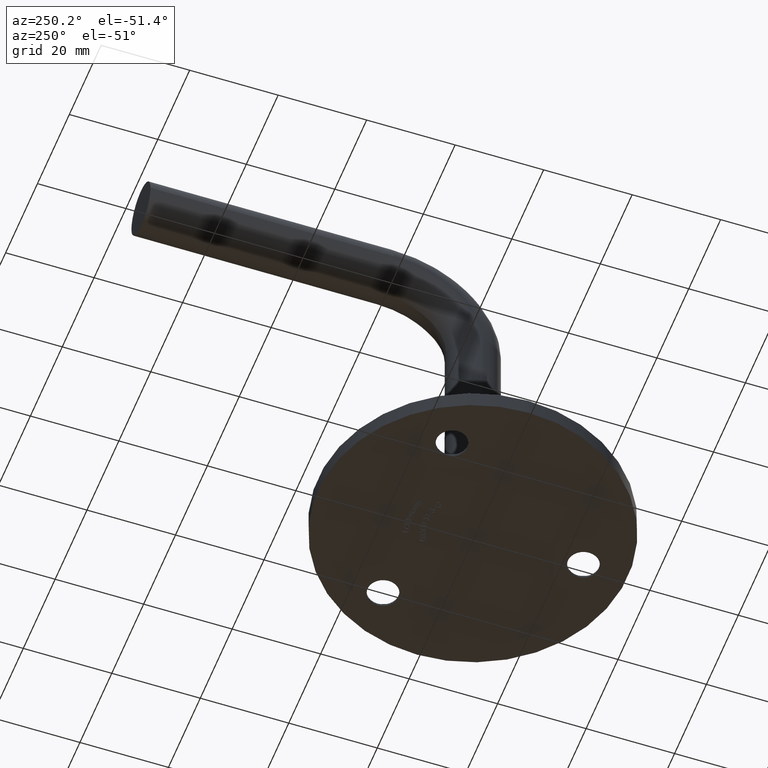
[diagram: clean part render]
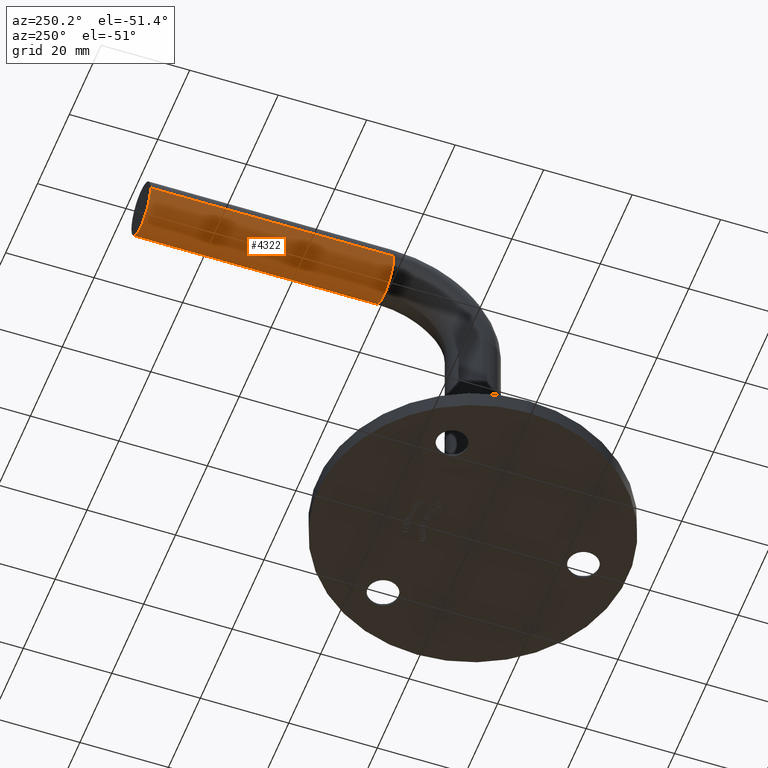
[diagram: same view with one face highlighted and labeled with its STEP entity id]
A machine part, auxiliary view. The second image highlights one B-rep face of the part: STEP entity #4322.
In plain terms, the highlighted cylindrical surface (edge-blend (fillet) strip) has radius 6 mm, axis along (0, 1, 0).
Its self-contained STEP definition (entity closure, byte-faithful):
#484 = DIRECTION ( 'NONE',  ( -1.000000000000000000, 0.0000000000000000000, 0.0000000000000000000 ) ) ;
#641 = VERTEX_POINT ( 'NONE', #7590 ) ;
#716 = VERTEX_POINT ( 'NONE', #11495 ) ;
#762 = EDGE_CURVE ( 'NONE', #716, #641, #11593, .T. ) ;
#958 = DIRECTION ( 'NONE',  ( -1.000000000000000000, 0.0000000000000000000, 0.0000000000000000000 ) ) ;
#1068 = DIRECTION ( 'NONE',  ( -1.000000000000000000, 0.0000000000000000000, 0.0000000000000000000 ) ) ;
#1807 = LINE ( 'NONE', #1935, #15523 ) ;
#1935 = CARTESIAN_POINT ( 'NONE',  ( 6.000000000000000900, 20.00000000000000400, 79.00000000000000000 ) ) ;
#2104 = ORIENTED_EDGE ( 'NONE', *, *, #3686, .F. ) ;
#2360 = AXIS2_PLACEMENT_3D ( 'NONE', #4366, #11673, #15537 ) ;
#2448 = ORIENTED_EDGE ( 'NONE', *, *, #5112, .F. ) ;
#3088 = CARTESIAN_POINT ( 'NONE',  ( 6.000000000000000900, 20.00000000000000400, 79.00000000000000000 ) ) ;
#3210 = CIRCLE ( 'NONE', #11559, 6.000000000000000900 ) ;
#3282 = DIRECTION ( 'NONE',  ( 8.795190648421900900E-017, 1.000000000000000000, 0.0000000000000000000 ) ) ;
#3686 = EDGE_CURVE ( 'NONE', #9492, #641, #1807, .T. ) ;
#3984 = CARTESIAN_POINT ( 'NONE',  ( 0.0000000000000000000, 20.00000000000000400, 79.00000000000000000 ) ) ;
#4322 = ADVANCED_FACE ( 'NONE', ( #7185 ), #16205, .T. ) ;
#4366 = CARTESIAN_POINT ( 'NONE',  ( 0.0000000000000000000, 20.00000000000000400, 79.00000000000000000 ) ) ;
#4445 = ORIENTED_EDGE ( 'NONE', *, *, #13820, .T. ) ;
#5112 = EDGE_CURVE ( 'NONE', #6102, #13467, #6775, .T. ) ;
#5997 = EDGE_CURVE ( 'NONE', #13467, #9492, #3210, .T. ) ;
#6102 = VERTEX_POINT ( 'NONE', #15081 ) ;
#6775 = CIRCLE ( 'NONE', #9605, 6.000000000000000900 ) ;
#7185 = FACE_OUTER_BOUND ( 'NONE', #13787, .T. ) ;
#7590 = CARTESIAN_POINT ( 'NONE',  ( 6.000000000000006200, 75.00000000000000000, 79.00000000000000000 ) ) ;
#8267 = DIRECTION ( 'NONE',  ( 0.0000000000000000000, -1.000000000000000000, 1.608122649676636600E-016 ) ) ;
#8589 = DIRECTION ( 'NONE',  ( 0.0000000000000000000, -1.000000000000000000, 1.608122649676636600E-016 ) ) ;
#9492 = VERTEX_POINT ( 'NONE', #3088 ) ;
#9605 = AXIS2_PLACEMENT_3D ( 'NONE', #3984, #8267, #484 ) ;
#9673 = CARTESIAN_POINT ( 'NONE',  ( 4.837354856632045500E-015, 75.00000000000000000, 79.00000000000000000 ) ) ;
#10434 = VECTOR ( 'NONE', #14304, 1000.000000000000000 ) ;
#10811 = CARTESIAN_POINT ( 'NONE',  ( 0.0000000000000000000, 20.00000000000000400, 79.00000000000000000 ) ) ;
#11099 = ORIENTED_EDGE ( 'NONE', *, *, #5997, .F. ) ;
#11495 = CARTESIAN_POINT ( 'NONE',  ( -5.999999999999995600, 75.00000000000000000, 79.00000000000000000 ) ) ;
#11559 = AXIS2_PLACEMENT_3D ( 'NONE', #10811, #16017, #958 ) ;
#11593 = CIRCLE ( 'NONE', #16180, 6.000000000000000900 ) ;
#11611 = CARTESIAN_POINT ( 'NONE',  ( -6.000000000000000900, 20.00000000000000400, 79.00000000000000000 ) ) ;
#11673 = DIRECTION ( 'NONE',  ( 8.795190648421900900E-017, 1.000000000000000000, 0.0000000000000000000 ) ) ;
#12758 = CARTESIAN_POINT ( 'NONE',  ( 7.347880794884114800E-016, 20.00000000000000400, 73.00000000000000000 ) ) ;
#13467 = VERTEX_POINT ( 'NONE', #12758 ) ;
#13692 = ORIENTED_EDGE ( 'NONE', *, *, #762, .T. ) ;
#13720 = LINE ( 'NONE', #11611, #10434 ) ;
#13787 = EDGE_LOOP ( 'NONE', ( #2104, #11099, #2448, #4445, #13692 ) ) ;
#13820 = EDGE_CURVE ( 'NONE', #6102, #716, #13720, .T. ) ;
#14304 = DIRECTION ( 'NONE',  ( 8.795190648421900900E-017, 1.000000000000000000, 0.0000000000000000000 ) ) ;
#15081 = CARTESIAN_POINT ( 'NONE',  ( -6.000000000000000900, 20.00000000000000400, 79.00000000000000000 ) ) ;
#15523 = VECTOR ( 'NONE', #3282, 1000.000000000000000 ) ;
#15537 = DIRECTION ( 'NONE',  ( -1.000000000000000000, 0.0000000000000000000, 0.0000000000000000000 ) ) ;
#16017 = DIRECTION ( 'NONE',  ( 0.0000000000000000000, -1.000000000000000000, 1.608122649676636600E-016 ) ) ;
#16180 = AXIS2_PLACEMENT_3D ( 'NONE', #9673, #8589, #1068 ) ;
#16205 = CYLINDRICAL_SURFACE ( 'NONE', #2360, 6.000000000000000900 ) ;